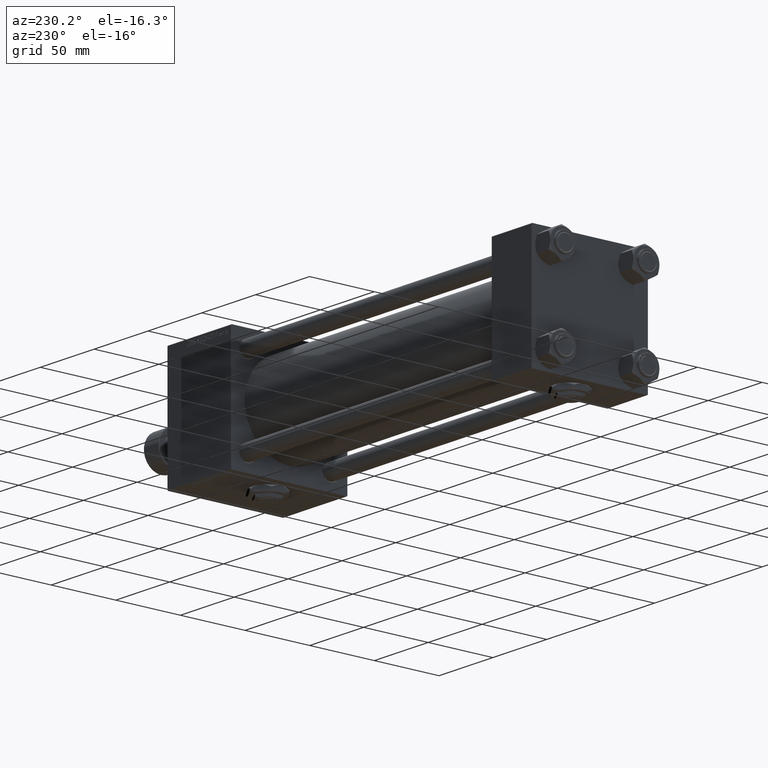
[diagram: clean part render]
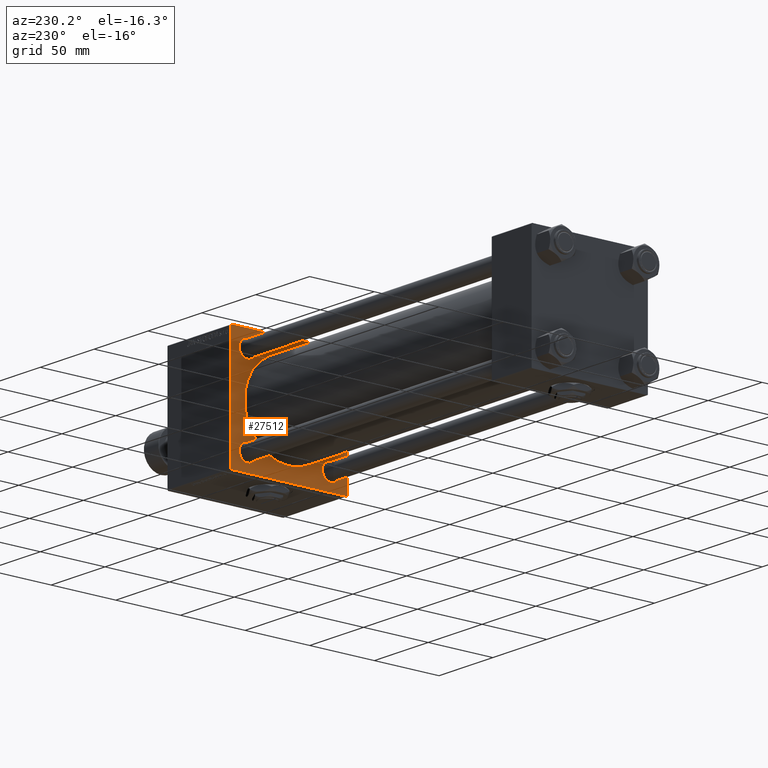
[diagram: same view with one face highlighted and labeled with its STEP entity id]
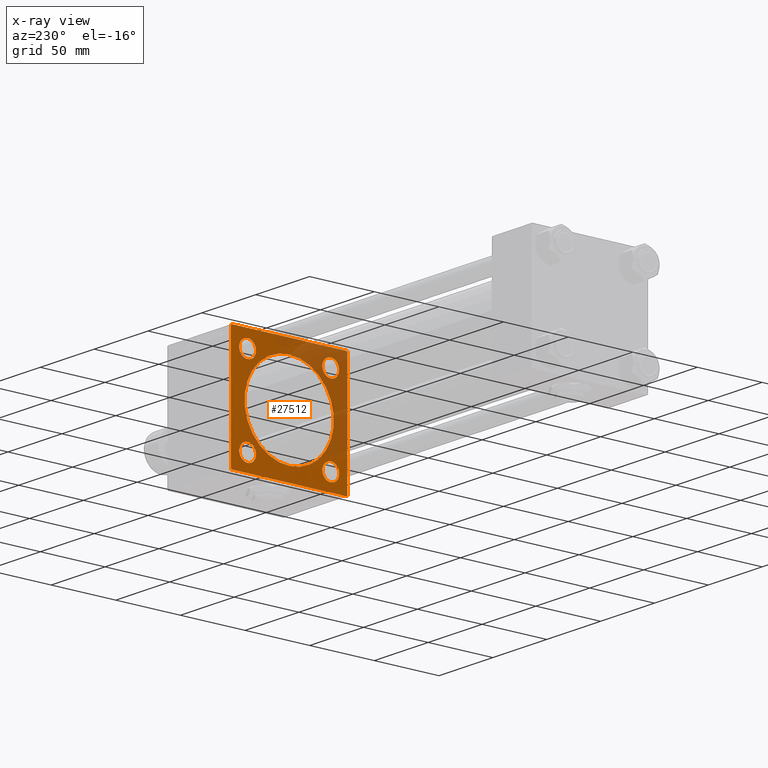
[diagram: x-ray of the same camera — body ghosted, the highlighted face saturated]
A machine part, auxiliary view. The second image highlights one B-rep face of the part: STEP entity #27512.
The next image is the same camera in x-ray: the body ghosted, the highlighted face saturated — about 32% of this face is hidden behind the body in this view.
In plain terms, the highlighted planar face has unit normal (-1, 0, 0).
Its self-contained STEP definition (entity closure, byte-faithful):
#272 = CARTESIAN_POINT ( 'NONE',  ( 278.9999999999999432, -32.14999999999997726, -38.65000000000001990 ) ) ;
#993 = DIRECTION ( 'NONE',  ( 0.000000000000000000, 0.000000000000000000, 1.000000000000000000 ) ) ;
#1917 = VERTEX_POINT ( 'NONE', #45621 ) ;
#2246 = DIRECTION ( 'NONE',  ( 0.000000000000000000, 0.000000000000000000, 1.000000000000000000 ) ) ;
#2967 = VERTEX_POINT ( 'NONE', #41354 ) ;
#3020 = VERTEX_POINT ( 'NONE', #10602 ) ;
#3026 = CARTESIAN_POINT ( 'NONE',  ( 278.9999999999999432, -32.14999999999997726, 32.15000000000001279 ) ) ;
#3342 = CARTESIAN_POINT ( 'NONE',  ( 278.9999999999999432, -44.49999999999995737, -45.00000000000000000 ) ) ;
#3411 = CARTESIAN_POINT ( 'NONE',  ( 278.9999999999999432, 1.622946243093158675E-15, -34.50000000000000000 ) ) ;
#3578 = DIRECTION ( 'NONE',  ( 0.000000000000000000, 0.000000000000000000, 1.000000000000000000 ) ) ;
#3649 = VECTOR ( 'NONE', #4031, 1000.000000000000114 ) ;
#3798 = VERTEX_POINT ( 'NONE', #48832 ) ;
#4031 = DIRECTION ( 'NONE',  ( 0.000000000000000000, 0.7071067811865474617, -0.7071067811865474617 ) ) ;
#4795 = CARTESIAN_POINT ( 'NONE',  ( 278.9999999999999432, 32.14999999999999147, 25.65000000000000213 ) ) ;
#4828 = DIRECTION ( 'NONE',  ( 0.000000000000000000, 0.000000000000000000, -1.000000000000000000 ) ) ;
#6250 = CARTESIAN_POINT ( 'NONE',  ( 278.9999999999999432, 45.00000000000001421, 45.00000000000000000 ) ) ;
#6404 = AXIS2_PLACEMENT_3D ( 'NONE', #22184, #38452, #50726 ) ;
#6803 = ORIENTED_EDGE ( 'NONE', *, *, #26587, .T. ) ;
#7003 = LINE ( 'NONE', #36089, #7148 ) ;
#7148 = VECTOR ( 'NONE', #19023, 1000.000000000000000 ) ;
#7149 = DIRECTION ( 'NONE',  ( 0.000000000000000000, -0.7071067811865525687, 0.7071067811865425767 ) ) ;
#7298 = DIRECTION ( 'NONE',  ( 0.000000000000000000, 0.000000000000000000, -1.000000000000000000 ) ) ;
#7731 = VERTEX_POINT ( 'NONE', #3342 ) ;
#7775 = LINE ( 'NONE', #36340, #3649 ) ;
#7875 = CIRCLE ( 'NONE', #21497, 6.499999999999999112 ) ;
#8067 = FACE_OUTER_BOUND ( 'NONE', #26113, .T. ) ;
#8214 = VERTEX_POINT ( 'NONE', #4795 ) ;
#8389 = CARTESIAN_POINT ( 'NONE',  ( 278.9999999999999432, 32.14999999999999147, -25.64999999999999858 ) ) ;
#8454 = VERTEX_POINT ( 'NONE', #3411 ) ;
#8580 = FACE_BOUND ( 'NONE', #13035, .T. ) ;
#9465 = LINE ( 'NONE', #6250, #42798 ) ;
#9861 = DIRECTION ( 'NONE',  ( -0.000000000000000000, 0.7071067811865081598, 0.7071067811865868746 ) ) ;
#10602 = CARTESIAN_POINT ( 'NONE',  ( 278.9999999999999432, 32.14999999999999147, 38.65000000000001279 ) ) ;
#10865 = EDGE_LOOP ( 'NONE', ( #39086, #42027 ) ) ;
#11025 = EDGE_CURVE ( 'NONE', #3798, #32807, #18390, .T. ) ;
#11136 = CARTESIAN_POINT ( 'NONE',  ( 278.9999999999999432, -44.74999999999968736, -44.75000000000031264 ) ) ;
#11528 = CARTESIAN_POINT ( 'NONE',  ( 278.9999999999999432, -32.14999999999997726, 25.65000000000000213 ) ) ;
#11936 = ORIENTED_EDGE ( 'NONE', *, *, #21628, .T. ) ;
#12097 = DIRECTION ( 'NONE',  ( 1.000000000000000000, 0.000000000000000000, 0.000000000000000000 ) ) ;
#12664 = CIRCLE ( 'NONE', #34835, 6.500000000000005329 ) ;
#12907 = ORIENTED_EDGE ( 'NONE', *, *, #33247, .F. ) ;
#12958 = CARTESIAN_POINT ( 'NONE',  ( 278.9999999999999432, 32.14999999999999147, 32.15000000000000568 ) ) ;
#13035 = EDGE_LOOP ( 'NONE', ( #41479, #13071 ) ) ;
#13037 = VERTEX_POINT ( 'NONE', #51997 ) ;
#13071 = ORIENTED_EDGE ( 'NONE', *, *, #37625, .T. ) ;
#13640 = EDGE_CURVE ( 'NONE', #16438, #16971, #25747, .T. ) ;
#14103 = EDGE_CURVE ( 'NONE', #3020, #8214, #21517, .T. ) ;
#14493 = VERTEX_POINT ( 'NONE', #38873 ) ;
#14807 = EDGE_CURVE ( 'NONE', #14493, #17641, #9465, .T. ) ;
#15152 = EDGE_LOOP ( 'NONE', ( #34033, #22255 ) ) ;
#15528 = AXIS2_PLACEMENT_3D ( 'NONE', #22537, #38811, #2246 ) ;
#16336 = EDGE_CURVE ( 'NONE', #7731, #32807, #47699, .T. ) ;
#16438 = VERTEX_POINT ( 'NONE', #46330 ) ;
#16625 = CARTESIAN_POINT ( 'NONE',  ( 278.9999999999999432, 45.00000000000001421, -44.49999999999997158 ) ) ;
#16746 = DIRECTION ( 'NONE',  ( 1.000000000000000000, 0.000000000000000000, 0.000000000000000000 ) ) ;
#16971 = VERTEX_POINT ( 'NONE', #272 ) ;
#17364 = CARTESIAN_POINT ( 'NONE',  ( 278.9999999999999432, -2.602085213965210642E-15, 0.000000000000000000 ) ) ;
#17491 = ORIENTED_EDGE ( 'NONE', *, *, #14103, .T. ) ;
#17641 = VERTEX_POINT ( 'NONE', #16625 ) ;
#18088 = AXIS2_PLACEMENT_3D ( 'NONE', #3026, #19044, #43059 ) ;
#18276 = CIRCLE ( 'NONE', #48936, 6.500000000000005329 ) ;
#18390 = LINE ( 'NONE', #34400, #30772 ) ;
#18558 = DIRECTION ( 'NONE',  ( 1.000000000000000000, 0.000000000000000000, 0.000000000000000000 ) ) ;
#19023 = DIRECTION ( 'NONE',  ( 0.000000000000000000, -1.000000000000000000, -1.541976423090495140E-16 ) ) ;
#19044 = DIRECTION ( 'NONE',  ( 1.000000000000000000, 0.000000000000000000, 0.000000000000000000 ) ) ;
#19661 = DIRECTION ( 'NONE',  ( 1.000000000000000000, 0.000000000000000000, 0.000000000000000000 ) ) ;
#19881 = CARTESIAN_POINT ( 'NONE',  ( 278.9999999999999432, -44.99999999999999289, -44.49999999999997158 ) ) ;
#20000 = AXIS2_PLACEMENT_3D ( 'NONE', #44673, #12097, #3578 ) ;
#20035 = CIRCLE ( 'NONE', #6404, 6.500000000000005329 ) ;
#21497 = AXIS2_PLACEMENT_3D ( 'NONE', #12958, #24453, #29259 ) ;
#21502 = EDGE_CURVE ( 'NONE', #16971, #16438, #12664, .T. ) ;
#21517 = CIRCLE ( 'NONE', #15528, 6.499999999999999112 ) ;
#21548 = LINE ( 'NONE', #49561, #21784 ) ;
#21628 = EDGE_CURVE ( 'NONE', #17641, #13037, #40215, .T. ) ;
#21784 = VECTOR ( 'NONE', #25291, 1000.000000000000000 ) ;
#22184 = CARTESIAN_POINT ( 'NONE',  ( 278.9999999999999432, 32.14999999999999147, -32.15000000000000568 ) ) ;
#22255 = ORIENTED_EDGE ( 'NONE', *, *, #42850, .T. ) ;
#22537 = CARTESIAN_POINT ( 'NONE',  ( 278.9999999999999432, 32.14999999999999147, 32.15000000000000568 ) ) ;
#23017 = CARTESIAN_POINT ( 'NONE',  ( 278.9999999999999432, -32.14999999999997726, 38.65000000000002700 ) ) ;
#23113 = ORIENTED_EDGE ( 'NONE', *, *, #39541, .T. ) ;
#23235 = CIRCLE ( 'NONE', #30894, 34.50000000000000000 ) ;
#23821 = DIRECTION ( 'NONE',  ( -0.000000000000000000, 0.000000000000000000, 1.000000000000000000 ) ) ;
#24106 = DIRECTION ( 'NONE',  ( 1.000000000000000000, 0.000000000000000000, 0.000000000000000000 ) ) ;
#24197 = CARTESIAN_POINT ( 'NONE',  ( 278.9999999999999432, 44.75000000000000000, -44.75000000000000000 ) ) ;
#24453 = DIRECTION ( 'NONE',  ( 1.000000000000000000, 0.000000000000000000, 0.000000000000000000 ) ) ;
#24875 = FACE_BOUND ( 'NONE', #50081, .T. ) ;
#25118 = DIRECTION ( 'NONE',  ( 1.000000000000000000, 0.000000000000000000, 0.000000000000000000 ) ) ;
#25291 = DIRECTION ( 'NONE',  ( 0.000000000000000000, -1.000000000000000000, 0.000000000000000000 ) ) ;
#25747 = CIRCLE ( 'NONE', #39384, 6.500000000000005329 ) ;
#26113 = EDGE_LOOP ( 'NONE', ( #34817, #30062, #51323, #6803, #12907, #48190, #38281, #11936 ) ) ;
#26505 = AXIS2_PLACEMENT_3D ( 'NONE', #48111, #27840, #23821 ) ;
#26587 = EDGE_CURVE ( 'NONE', #3798, #1917, #30684, .T. ) ;
#27512 = ADVANCED_FACE ( 'NONE', ( #8580, #31845, #24875, #41164, #35830, #8067 ), #52104, .T. ) ;
#27840 = DIRECTION ( 'NONE',  ( -1.000000000000000000, 0.000000000000000000, -0.000000000000000000 ) ) ;
#27845 = ORIENTED_EDGE ( 'NONE', *, *, #38445, .T. ) ;
#28366 = VERTEX_POINT ( 'NONE', #8389 ) ;
#29259 = DIRECTION ( 'NONE',  ( 0.000000000000000000, 0.000000000000000000, 1.000000000000000000 ) ) ;
#30062 = ORIENTED_EDGE ( 'NONE', *, *, #16336, .T. ) ;
#30684 = LINE ( 'NONE', #46947, #33293 ) ;
#30772 = VECTOR ( 'NONE', #50669, 1000.000000000000000 ) ;
#30888 = EDGE_CURVE ( 'NONE', #2967, #14493, #7775, .T. ) ;
#30894 = AXIS2_PLACEMENT_3D ( 'NONE', #17364, #25118, #4828 ) ;
#31057 = EDGE_CURVE ( 'NONE', #42051, #8454, #23235, .T. ) ;
#31365 = CARTESIAN_POINT ( 'NONE',  ( 278.9999999999999432, -32.14999999999997726, 32.15000000000001279 ) ) ;
#31845 = FACE_BOUND ( 'NONE', #43492, .T. ) ;
#32159 = VERTEX_POINT ( 'NONE', #23017 ) ;
#32729 = DIRECTION ( 'NONE',  ( -0.000000000000000000, -0.7071067811865474617, -0.7071067811865474617 ) ) ;
#32807 = VERTEX_POINT ( 'NONE', #19881 ) ;
#33247 = EDGE_CURVE ( 'NONE', #2967, #1917, #7003, .T. ) ;
#33293 = VECTOR ( 'NONE', #9861, 1000.000000000000000 ) ;
#33638 = CIRCLE ( 'NONE', #20000, 6.500000000000005329 ) ;
#34033 = ORIENTED_EDGE ( 'NONE', *, *, #31057, .T. ) ;
#34295 = ORIENTED_EDGE ( 'NONE', *, *, #47370, .T. ) ;
#34400 = CARTESIAN_POINT ( 'NONE',  ( 278.9999999999999432, -45.00000000000000000, 44.99999999999998579 ) ) ;
#34817 = ORIENTED_EDGE ( 'NONE', *, *, #40930, .T. ) ;
#34835 = AXIS2_PLACEMENT_3D ( 'NONE', #36462, #19661, #44201 ) ;
#35096 = DIRECTION ( 'NONE',  ( 0.000000000000000000, 0.000000000000000000, 1.000000000000000000 ) ) ;
#35830 = FACE_BOUND ( 'NONE', #15152, .T. ) ;
#36089 = CARTESIAN_POINT ( 'NONE',  ( 278.9999999999999432, 45.00000000000001421, 45.00000000000000000 ) ) ;
#36163 = VECTOR ( 'NONE', #7149, 999.9999999999998863 ) ;
#36340 = CARTESIAN_POINT ( 'NONE',  ( 278.9999999999999432, 44.74999999999997158, 44.74999999999997158 ) ) ;
#36462 = CARTESIAN_POINT ( 'NONE',  ( 278.9999999999999432, -32.14999999999997726, -32.15000000000001279 ) ) ;
#37625 = EDGE_CURVE ( 'NONE', #41260, #32159, #18276, .T. ) ;
#37733 = CARTESIAN_POINT ( 'NONE',  ( 278.9999999999999432, 32.14999999999999147, -38.65000000000001279 ) ) ;
#38281 = ORIENTED_EDGE ( 'NONE', *, *, #14807, .T. ) ;
#38445 = EDGE_CURVE ( 'NONE', #50175, #28366, #33638, .T. ) ;
#38452 = DIRECTION ( 'NONE',  ( 1.000000000000000000, 0.000000000000000000, 0.000000000000000000 ) ) ;
#38811 = DIRECTION ( 'NONE',  ( 1.000000000000000000, 0.000000000000000000, 0.000000000000000000 ) ) ;
#38873 = CARTESIAN_POINT ( 'NONE',  ( 278.9999999999999432, 45.00000000000001421, 44.49999999999994316 ) ) ;
#39086 = ORIENTED_EDGE ( 'NONE', *, *, #13640, .T. ) ;
#39384 = AXIS2_PLACEMENT_3D ( 'NONE', #49034, #16746, #993 ) ;
#39541 = EDGE_CURVE ( 'NONE', #28366, #50175, #20035, .T. ) ;
#39602 = CARTESIAN_POINT ( 'NONE',  ( 278.9999999999999432, -2.602085213965210642E-15, 0.000000000000000000 ) ) ;
#40215 = LINE ( 'NONE', #24197, #48482 ) ;
#40930 = EDGE_CURVE ( 'NONE', #13037, #7731, #21548, .T. ) ;
#41164 = FACE_BOUND ( 'NONE', #10865, .T. ) ;
#41260 = VERTEX_POINT ( 'NONE', #11528 ) ;
#41354 = CARTESIAN_POINT ( 'NONE',  ( 278.9999999999999432, 44.49999999999995737, 45.00000000000000000 ) ) ;
#41479 = ORIENTED_EDGE ( 'NONE', *, *, #46872, .T. ) ;
#42027 = ORIENTED_EDGE ( 'NONE', *, *, #21502, .T. ) ;
#42051 = VERTEX_POINT ( 'NONE', #50256 ) ;
#42798 = VECTOR ( 'NONE', #47084, 1000.000000000000000 ) ;
#42850 = EDGE_CURVE ( 'NONE', #8454, #42051, #52537, .T. ) ;
#43059 = DIRECTION ( 'NONE',  ( 0.000000000000000000, 0.000000000000000000, 1.000000000000000000 ) ) ;
#43492 = EDGE_LOOP ( 'NONE', ( #17491, #34295 ) ) ;
#44201 = DIRECTION ( 'NONE',  ( 0.000000000000000000, 0.000000000000000000, 1.000000000000000000 ) ) ;
#44492 = CIRCLE ( 'NONE', #18088, 6.500000000000005329 ) ;
#44673 = CARTESIAN_POINT ( 'NONE',  ( 278.9999999999999432, 32.14999999999999147, -32.15000000000000568 ) ) ;
#45621 = CARTESIAN_POINT ( 'NONE',  ( 278.9999999999999432, -44.50000000000002842, 44.99999999999998579 ) ) ;
#46330 = CARTESIAN_POINT ( 'NONE',  ( 278.9999999999999432, -32.14999999999997726, -25.65000000000000568 ) ) ;
#46872 = EDGE_CURVE ( 'NONE', #32159, #41260, #44492, .T. ) ;
#46947 = CARTESIAN_POINT ( 'NONE',  ( 278.9999999999999432, -44.75000000000249401, 44.74999999999752021 ) ) ;
#47084 = DIRECTION ( 'NONE',  ( 0.000000000000000000, 0.000000000000000000, -1.000000000000000000 ) ) ;
#47370 = EDGE_CURVE ( 'NONE', #8214, #3020, #7875, .T. ) ;
#47699 = LINE ( 'NONE', #11136, #36163 ) ;
#48111 = CARTESIAN_POINT ( 'NONE',  ( 278.9999999999999432, 0.000000000000000000, 0.000000000000000000 ) ) ;
#48190 = ORIENTED_EDGE ( 'NONE', *, *, #30888, .T. ) ;
#48482 = VECTOR ( 'NONE', #32729, 1000.000000000000114 ) ;
#48832 = CARTESIAN_POINT ( 'NONE',  ( 278.9999999999999432, -45.00000000000000000, 44.49999999999998579 ) ) ;
#48936 = AXIS2_PLACEMENT_3D ( 'NONE', #31365, #18558, #35096 ) ;
#49034 = CARTESIAN_POINT ( 'NONE',  ( 278.9999999999999432, -32.14999999999997726, -32.15000000000001279 ) ) ;
#49128 = AXIS2_PLACEMENT_3D ( 'NONE', #39602, #24106, #7298 ) ;
#49561 = CARTESIAN_POINT ( 'NONE',  ( 278.9999999999999432, 45.00000000000001421, -45.00000000000000000 ) ) ;
#50081 = EDGE_LOOP ( 'NONE', ( #23113, #27845 ) ) ;
#50175 = VERTEX_POINT ( 'NONE', #37733 ) ;
#50256 = CARTESIAN_POINT ( 'NONE',  ( 278.9999999999999432, -2.602085213965210642E-15, 34.50000000000000000 ) ) ;
#50669 = DIRECTION ( 'NONE',  ( 0.000000000000000000, 7.709882115452478166E-17, -1.000000000000000000 ) ) ;
#50726 = DIRECTION ( 'NONE',  ( 0.000000000000000000, 0.000000000000000000, 1.000000000000000000 ) ) ;
#51323 = ORIENTED_EDGE ( 'NONE', *, *, #11025, .F. ) ;
#51997 = CARTESIAN_POINT ( 'NONE',  ( 278.9999999999999432, 44.50000000000001421, -45.00000000000000000 ) ) ;
#52104 = PLANE ( 'NONE',  #26505 ) ;
#52537 = CIRCLE ( 'NONE', #49128, 34.50000000000000000 ) ;